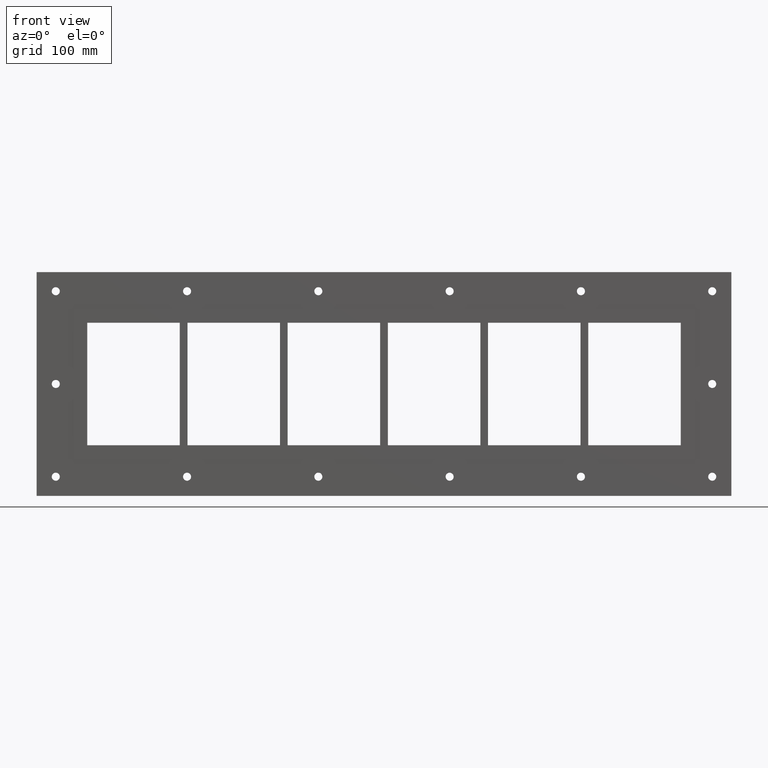
[diagram: clean part render]
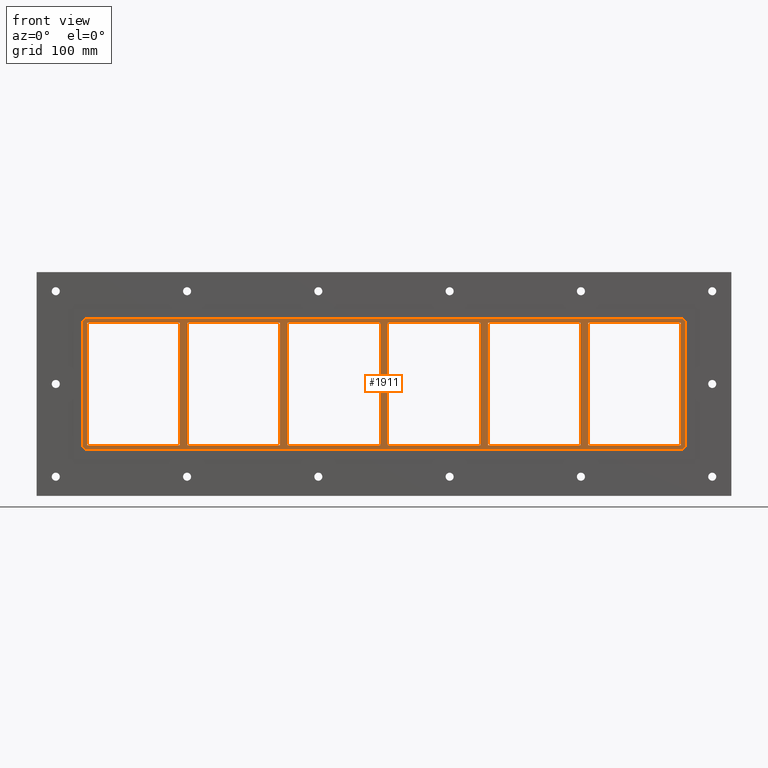
[diagram: same view with one face highlighted and labeled with its STEP entity id]
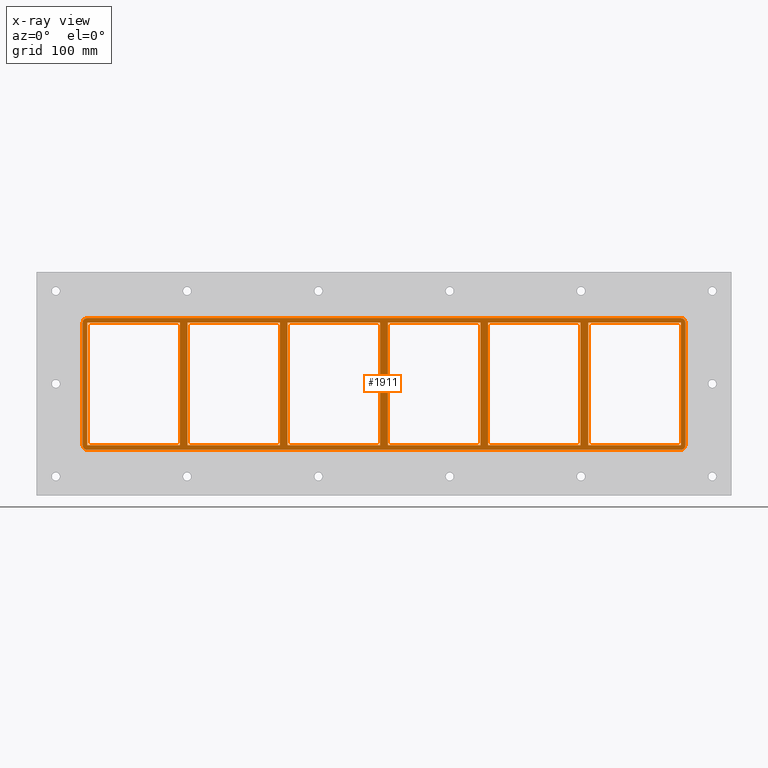
[diagram: x-ray of the same camera — body ghosted, the highlighted face saturated]
A machine part, front view. The second image highlights one B-rep face of the part: STEP entity #1911.
The next image is the same camera in x-ray: the body ghosted, the highlighted face saturated — about 0% of this face is hidden behind the body in this view.
In plain terms, the highlighted planar face has unit normal (0, 1, 0).
Its self-contained STEP definition (entity closure, byte-faithful):
#465=CARTESIAN_POINT('',(255.99999999999812,-3.0,-79.750000000000014));
#466=VERTEX_POINT('',#465);
#467=CARTESIAN_POINT('',(255.99999999999798,-3.0,79.750000000000014));
#468=VERTEX_POINT('',#467);
#469=CARTESIAN_POINT('',(255.99999999999812,-3.0,-79.750000000000014));
#470=DIRECTION('',(0.0,0.0,1.0));
#471=VECTOR('',#470,159.50000000000003);
#472=LINE('',#469,#471);
#473=EDGE_CURVE('',#466,#468,#472,.T.);
#505=CARTESIAN_POINT('',(265.99999999999642,-3.0,79.750000000000014));
#506=VERTEX_POINT('',#505);
#507=CARTESIAN_POINT('',(265.99999999999642,-3.0,-79.74999999998704));
#508=VERTEX_POINT('',#507);
#509=CARTESIAN_POINT('',(265.99999999999642,-3.0,79.750000000000014));
#510=DIRECTION('',(0.0,0.0,-1.0));
#511=VECTOR('',#510,159.49999999998707);
#512=LINE('',#509,#511);
#513=EDGE_CURVE('',#506,#508,#512,.T.);
#545=CARTESIAN_POINT('',(125.49999999999812,-3.0,-79.750000000000014));
#546=VERTEX_POINT('',#545);
#547=CARTESIAN_POINT('',(125.49999999999798,-3.0,79.750000000000014));
#548=VERTEX_POINT('',#547);
#549=CARTESIAN_POINT('',(125.49999999999812,-3.0,-79.750000000000014));
#550=DIRECTION('',(0.0,0.0,1.0));
#551=VECTOR('',#550,159.50000000000003);
#552=LINE('',#549,#551);
#553=EDGE_CURVE('',#546,#548,#552,.T.);
#585=CARTESIAN_POINT('',(135.49999999999642,-3.0,79.750000000000014));
#586=VERTEX_POINT('',#585);
#587=CARTESIAN_POINT('',(135.49999999999642,-3.0,-79.74999999998704));
#588=VERTEX_POINT('',#587);
#589=CARTESIAN_POINT('',(135.49999999999642,-3.0,79.750000000000014));
#590=DIRECTION('',(0.0,0.0,-1.0));
#591=VECTOR('',#590,159.49999999998707);
#592=LINE('',#589,#591);
#593=EDGE_CURVE('',#586,#588,#592,.T.);
#625=CARTESIAN_POINT('',(-5.000000000001919,-3.0,-79.750000000000014));
#626=VERTEX_POINT('',#625);
#627=CARTESIAN_POINT('',(-5.000000000002061,-3.0,79.750000000000014));
#628=VERTEX_POINT('',#627);
#629=CARTESIAN_POINT('',(-5.000000000001919,-3.0,-79.750000000000014));
#630=DIRECTION('',(0.0,0.0,1.0));
#631=VECTOR('',#630,159.50000000000003);
#632=LINE('',#629,#631);
#633=EDGE_CURVE('',#626,#628,#632,.T.);
#665=CARTESIAN_POINT('',(4.999999999996376,-3.0,79.750000000000014));
#666=VERTEX_POINT('',#665);
#667=CARTESIAN_POINT('',(4.999999999996376,-3.0,-79.74999999998704));
#668=VERTEX_POINT('',#667);
#669=CARTESIAN_POINT('',(4.999999999996376,-3.0,79.750000000000014));
#670=DIRECTION('',(0.0,0.0,-1.0));
#671=VECTOR('',#670,159.49999999998707);
#672=LINE('',#669,#671);
#673=EDGE_CURVE('',#666,#668,#672,.T.);
#705=CARTESIAN_POINT('',(-135.50000000000193,-3.0,-79.750000000000014));
#706=VERTEX_POINT('',#705);
#707=CARTESIAN_POINT('',(-135.50000000000207,-3.0,79.750000000000014));
#708=VERTEX_POINT('',#707);
#709=CARTESIAN_POINT('',(-135.50000000000193,-3.0,-79.750000000000014));
#710=DIRECTION('',(0.0,0.0,1.0));
#711=VECTOR('',#710,159.50000000000003);
#712=LINE('',#709,#711);
#713=EDGE_CURVE('',#706,#708,#712,.T.);
#745=CARTESIAN_POINT('',(-125.50000000000364,-3.0,79.750000000000014));
#746=VERTEX_POINT('',#745);
#747=CARTESIAN_POINT('',(-125.50000000000364,-3.0,-79.74999999998704));
#748=VERTEX_POINT('',#747);
#749=CARTESIAN_POINT('',(-125.50000000000364,-3.0,79.750000000000014));
#750=DIRECTION('',(0.0,0.0,-1.0));
#751=VECTOR('',#750,159.49999999998707);
#752=LINE('',#749,#751);
#753=EDGE_CURVE('',#746,#748,#752,.T.);
#794=CARTESIAN_POINT('',(-256.00000000000364,-3.0,-79.74999999998704));
#795=VERTEX_POINT('',#794);
#802=CARTESIAN_POINT('',(-135.50000000000196,-3.0,-79.750000000000014));
#803=DIRECTION('',(-1.0,0.0,0.0));
#804=VECTOR('',#803,120.50000000000168);
#805=LINE('',#802,#804);
#806=EDGE_CURVE('',#706,#795,#805,.T.);
#824=CARTESIAN_POINT('',(-5.000000000001904,-3.0,-79.750000000000014));
#825=DIRECTION('',(-1.0,0.0,0.0));
#826=VECTOR('',#825,120.50000000000171);
#827=LINE('',#824,#826);
#828=EDGE_CURVE('',#626,#748,#827,.T.);
#846=CARTESIAN_POINT('',(125.49999999999812,-3.0,-79.750000000000014));
#847=DIRECTION('',(-1.0,0.0,0.0));
#848=VECTOR('',#847,120.50000000000173);
#849=LINE('',#846,#848);
#850=EDGE_CURVE('',#546,#668,#849,.T.);
#868=CARTESIAN_POINT('',(255.99999999999812,-3.0,-79.750000000000014));
#869=DIRECTION('',(-1.0,0.0,0.0));
#870=VECTOR('',#869,120.50000000000171);
#871=LINE('',#868,#870);
#872=EDGE_CURVE('',#466,#588,#871,.T.);
#883=CARTESIAN_POINT('',(386.50000000000006,-3.0,-79.750000000000014));
#884=VERTEX_POINT('',#883);
#885=CARTESIAN_POINT('',(386.50000000000006,-3.0,-79.750000000000014));
#886=DIRECTION('',(-1.0,0.0,0.0));
#887=VECTOR('',#886,120.50000000000364);
#888=LINE('',#885,#887);
#889=EDGE_CURVE('',#884,#508,#888,.T.);
#914=CARTESIAN_POINT('',(-256.00000000000364,-3.0,79.750000000000014));
#915=VERTEX_POINT('',#914);
#916=CARTESIAN_POINT('',(-256.00000000000364,-3.0,79.750000000000014));
#917=DIRECTION('',(1.0,0.0,0.0));
#918=VECTOR('',#917,120.50000000000156);
#919=LINE('',#916,#918);
#920=EDGE_CURVE('',#915,#708,#919,.T.);
#945=CARTESIAN_POINT('',(-125.50000000000364,-3.0,79.750000000000014));
#946=DIRECTION('',(1.0,0.0,0.0));
#947=VECTOR('',#946,120.50000000000156);
#948=LINE('',#945,#947);
#949=EDGE_CURVE('',#746,#628,#948,.T.);
#967=CARTESIAN_POINT('',(4.99999999999639,-3.0,79.750000000000014));
#968=DIRECTION('',(1.0,0.0,0.0));
#969=VECTOR('',#968,120.50000000000159);
#970=LINE('',#967,#969);
#971=EDGE_CURVE('',#666,#548,#970,.T.);
#997=CARTESIAN_POINT('',(386.50000000000006,-3.0,79.750000000000014));
#998=VERTEX_POINT('',#997);
#1005=CARTESIAN_POINT('',(265.99999999999636,-3.0,79.750000000000014));
#1006=DIRECTION('',(1.0,0.0,0.0));
#1007=VECTOR('',#1006,120.50000000000375);
#1008=LINE('',#1005,#1007);
#1009=EDGE_CURVE('',#506,#998,#1008,.T.);
#1020=CARTESIAN_POINT('',(135.49999999999645,-3.0,79.750000000000014));
#1021=DIRECTION('',(1.0,0.0,0.0));
#1022=VECTOR('',#1021,120.50000000000148);
#1023=LINE('',#1020,#1022);
#1024=EDGE_CURVE('',#586,#468,#1023,.T.);
#1041=CARTESIAN_POINT('',(-266.00000000000193,-3.0,-79.750000000000014));
#1042=VERTEX_POINT('',#1041);
#1043=CARTESIAN_POINT('',(-266.00000000000205,-3.0,79.750000000000014));
#1044=VERTEX_POINT('',#1043);
#1045=CARTESIAN_POINT('',(-266.00000000000193,-3.0,-79.750000000000014));
#1046=DIRECTION('',(0.0,0.0,1.0));
#1047=VECTOR('',#1046,159.50000000000003);
#1048=LINE('',#1045,#1047);
#1049=EDGE_CURVE('',#1042,#1044,#1048,.T.);
#1081=CARTESIAN_POINT('',(-256.00000000000364,-3.0,79.750000000000014));
#1082=DIRECTION('',(0.0,0.0,-1.0));
#1083=VECTOR('',#1082,159.49999999998707);
#1084=LINE('',#1081,#1083);
#1085=EDGE_CURVE('',#915,#795,#1084,.T.);
#1112=CARTESIAN_POINT('',(-386.50000000000006,-3.0,-79.750000000000014));
#1113=VERTEX_POINT('',#1112);
#1120=CARTESIAN_POINT('',(-266.00000000000193,-3.0,-79.750000000000014));
#1121=DIRECTION('',(-1.0,0.0,0.0));
#1122=VECTOR('',#1121,120.49999999999818);
#1123=LINE('',#1120,#1122);
#1124=EDGE_CURVE('',#1042,#1113,#1123,.T.);
#1135=CARTESIAN_POINT('',(-386.50000000000006,-3.0,79.750000000000014));
#1136=VERTEX_POINT('',#1135);
#1137=CARTESIAN_POINT('',(-386.50000000000006,-3.0,79.750000000000014));
#1138=DIRECTION('',(1.0,0.0,0.0));
#1139=VECTOR('',#1138,120.49999999999801);
#1140=LINE('',#1137,#1139);
#1141=EDGE_CURVE('',#1136,#1044,#1140,.T.);
#1545=CARTESIAN_POINT('',(-386.50000000000006,-3.0,-79.750000000000014));
#1546=DIRECTION('',(0.0,0.0,1.0));
#1547=VECTOR('',#1546,159.50000000000006);
#1548=LINE('',#1545,#1547);
#1549=EDGE_CURVE('',#1113,#1136,#1548,.T.);
#1560=CARTESIAN_POINT('',(386.50000000000023,-3.0,85.750000000000028));
#1561=VERTEX_POINT('',#1560);
#1568=CARTESIAN_POINT('',(392.50000000000011,-3.0,79.750000000000028));
#1569=VERTEX_POINT('',#1568);
#1570=CARTESIAN_POINT('',(386.50000000000011,-3.0,79.750000000000028));
#1571=DIRECTION('',(0.0,1.0,0.0));
#1572=DIRECTION('',(0.707106781186554,0.0,0.707106781186541));
#1573=AXIS2_PLACEMENT_3D('',#1570,#1571,#1572);
#1574=CIRCLE('',#1573,6.0);
#1575=EDGE_CURVE('',#1561,#1569,#1574,.T.);
#1625=CARTESIAN_POINT('',(392.50000000000011,-3.0,-79.750000000000014));
#1626=VERTEX_POINT('',#1625);
#1627=CARTESIAN_POINT('',(392.50000000000011,-3.0,-79.750000000000028));
#1628=DIRECTION('',(0.0,0.0,1.0));
#1629=VECTOR('',#1628,159.50000000000006);
#1630=LINE('',#1627,#1629);
#1631=EDGE_CURVE('',#1626,#1569,#1630,.T.);
#1672=CARTESIAN_POINT('',(-386.50000000000006,-3.0,85.750000000000028));
#1673=VERTEX_POINT('',#1672);
#1680=CARTESIAN_POINT('',(386.50000000000023,-3.0,85.750000000000028));
#1681=DIRECTION('',(-1.0,0.0,0.0));
#1682=VECTOR('',#1681,773.00000000000023);
#1683=LINE('',#1680,#1682);
#1684=EDGE_CURVE('',#1561,#1673,#1683,.T.);
#1697=CARTESIAN_POINT('',(386.50000000000023,-3.0,-85.750000000000028));
#1698=VERTEX_POINT('',#1697);
#1699=CARTESIAN_POINT('',(386.50000000000023,-3.0,-79.750000000000028));
#1700=DIRECTION('',(0.0,1.0,0.0));
#1701=DIRECTION('',(0.707106781186544,0.0,-0.707106781186551));
#1702=AXIS2_PLACEMENT_3D('',#1699,#1700,#1701);
#1703=CIRCLE('',#1702,6.0);
#1704=EDGE_CURVE('',#1626,#1698,#1703,.T.);
#1746=CARTESIAN_POINT('',(-392.50000000000006,-3.0,79.750000000000014));
#1747=VERTEX_POINT('',#1746);
#1754=CARTESIAN_POINT('',(-386.50000000000006,-3.0,79.750000000000028));
#1755=DIRECTION('',(0.0,1.0,0.0));
#1756=DIRECTION('',(-0.707106781186544,0.0,0.707106781186551));
#1757=AXIS2_PLACEMENT_3D('',#1754,#1755,#1756);
#1758=CIRCLE('',#1757,6.0);
#1759=EDGE_CURVE('',#1747,#1673,#1758,.T.);
#1772=CARTESIAN_POINT('',(-386.50000000000011,-3.0,-85.750000000000028));
#1773=VERTEX_POINT('',#1772);
#1774=CARTESIAN_POINT('',(-386.50000000000011,-3.0,-85.750000000000028));
#1775=DIRECTION('',(1.0,0.0,0.0));
#1776=VECTOR('',#1775,773.00000000000034);
#1777=LINE('',#1774,#1776);
#1778=EDGE_CURVE('',#1773,#1698,#1777,.T.);
#1819=CARTESIAN_POINT('',(-392.50000000000006,-3.0,-79.750000000000028));
#1820=VERTEX_POINT('',#1819);
#1827=CARTESIAN_POINT('',(-392.50000000000006,-3.0,79.750000000000028));
#1828=DIRECTION('',(0.0,0.0,-1.0));
#1829=VECTOR('',#1828,159.50000000000006);
#1830=LINE('',#1827,#1829);
#1831=EDGE_CURVE('',#1747,#1820,#1830,.T.);
#1844=CARTESIAN_POINT('',(-386.50000000000006,-3.0,-79.750000000000028));
#1845=DIRECTION('',(0.0,1.0,0.0));
#1846=DIRECTION('',(-0.707106781186544,0.0,-0.707106781186551));
#1847=AXIS2_PLACEMENT_3D('',#1844,#1845,#1846);
#1848=CIRCLE('',#1847,6.0);
#1849=EDGE_CURVE('',#1773,#1820,#1848,.T.);
#1855=CARTESIAN_POINT('',(3.240714E-014,-3.0,0.0));
#1856=DIRECTION('',(0.0,1.0,0.0));
#1857=DIRECTION('',(0.0,0.0,1.0));
#1858=AXIS2_PLACEMENT_3D('',#1855,#1856,#1857);
#1859=PLANE('',#1858);
#1860=ORIENTED_EDGE('',*,*,#1704,.F.);
#1861=ORIENTED_EDGE('',*,*,#1631,.T.);
#1862=ORIENTED_EDGE('',*,*,#1575,.F.);
#1863=ORIENTED_EDGE('',*,*,#1684,.T.);
#1864=ORIENTED_EDGE('',*,*,#1759,.F.);
#1865=ORIENTED_EDGE('',*,*,#1831,.T.);
#1866=ORIENTED_EDGE('',*,*,#1849,.F.);
#1867=ORIENTED_EDGE('',*,*,#1778,.T.);
#1868=EDGE_LOOP('',(#1860,#1861,#1862,#1863,#1864,#1865,#1866,#1867));
#1869=FACE_OUTER_BOUND('',#1868,.T.);
#1870=ORIENTED_EDGE('',*,*,#872,.T.);
#1871=ORIENTED_EDGE('',*,*,#593,.F.);
#1872=ORIENTED_EDGE('',*,*,#1024,.T.);
#1873=ORIENTED_EDGE('',*,*,#473,.F.);
#1874=EDGE_LOOP('',(#1870,#1871,#1872,#1873));
#1875=FACE_BOUND('',#1874,.T.);
#1876=ORIENTED_EDGE('',*,*,#850,.T.);
#1877=ORIENTED_EDGE('',*,*,#673,.F.);
#1878=ORIENTED_EDGE('',*,*,#971,.T.);
#1879=ORIENTED_EDGE('',*,*,#553,.F.);
#1880=EDGE_LOOP('',(#1876,#1877,#1878,#1879));
#1881=FACE_BOUND('',#1880,.T.);
#1882=ORIENTED_EDGE('',*,*,#828,.T.);
#1883=ORIENTED_EDGE('',*,*,#753,.F.);
#1884=ORIENTED_EDGE('',*,*,#949,.T.);
#1885=ORIENTED_EDGE('',*,*,#633,.F.);
#1886=EDGE_LOOP('',(#1882,#1883,#1884,#1885));
#1887=FACE_BOUND('',#1886,.T.);
#1888=ORIENTED_EDGE('',*,*,#806,.T.);
#1889=ORIENTED_EDGE('',*,*,#1085,.F.);
#1890=ORIENTED_EDGE('',*,*,#920,.T.);
#1891=ORIENTED_EDGE('',*,*,#713,.F.);
#1892=EDGE_LOOP('',(#1888,#1889,#1890,#1891));
#1893=FACE_BOUND('',#1892,.T.);
#1894=ORIENTED_EDGE('',*,*,#1124,.T.);
#1895=ORIENTED_EDGE('',*,*,#1549,.T.);
#1896=ORIENTED_EDGE('',*,*,#1141,.T.);
#1897=ORIENTED_EDGE('',*,*,#1049,.F.);
#1898=EDGE_LOOP('',(#1894,#1895,#1896,#1897));
#1899=FACE_BOUND('',#1898,.T.);
#1900=ORIENTED_EDGE('',*,*,#513,.F.);
#1901=ORIENTED_EDGE('',*,*,#1009,.T.);
#1902=CARTESIAN_POINT('',(386.50000000000006,-3.0,79.750000000000014));
#1903=DIRECTION('',(0.0,0.0,-1.0));
#1904=VECTOR('',#1903,159.50000000000006);
#1905=LINE('',#1902,#1904);
#1906=EDGE_CURVE('',#998,#884,#1905,.T.);
#1907=ORIENTED_EDGE('',*,*,#1906,.T.);
#1908=ORIENTED_EDGE('',*,*,#889,.T.);
#1909=EDGE_LOOP('',(#1900,#1901,#1907,#1908));
#1910=FACE_BOUND('',#1909,.T.);
#1911=ADVANCED_FACE('',(#1869,#1875,#1881,#1887,#1893,#1899,#1910),#1859,.F.);